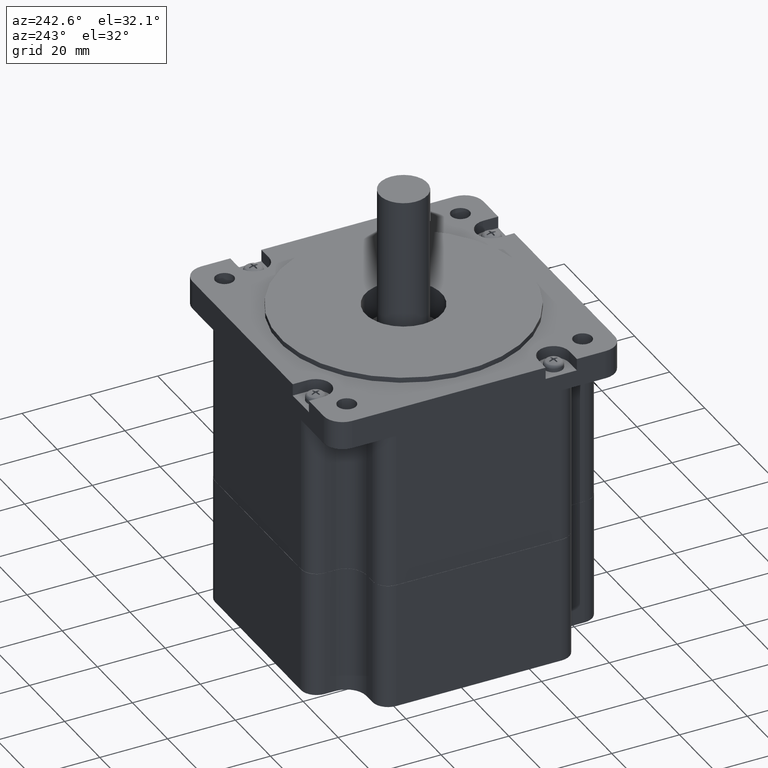
[diagram: clean part render]
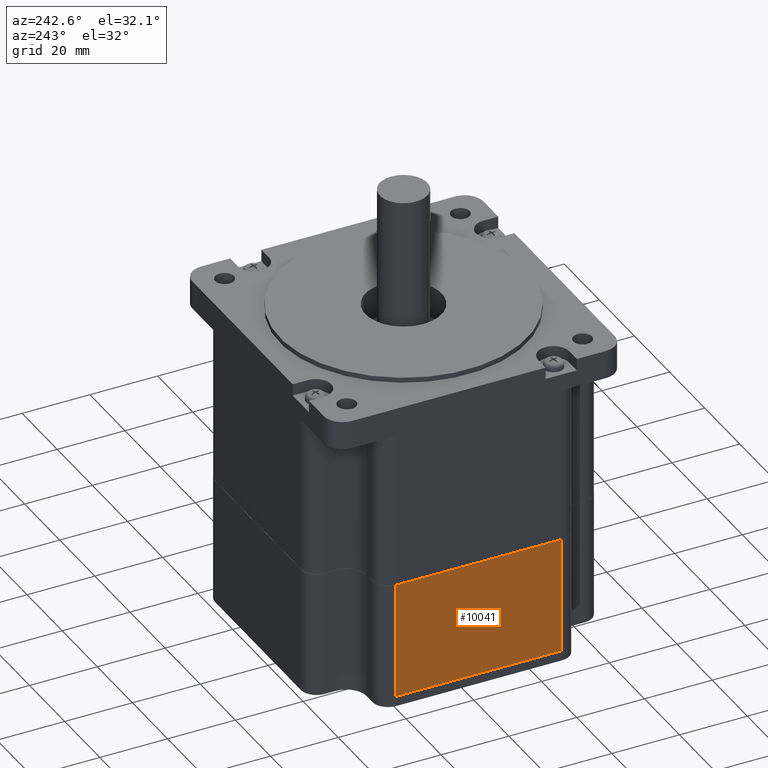
[diagram: same view with one face highlighted and labeled with its STEP entity id]
A machine part, auxiliary view. The second image highlights one B-rep face of the part: STEP entity #10041.
In plain terms, the highlighted planar face has unit normal (-1, 0, 0).
Its self-contained STEP definition (entity closure, byte-faithful):
#9983=CARTESIAN_POINT('',(-42.97500000000003,-24.424999999999997,-71.299999999999912));
#9984=VERTEX_POINT('',#9983);
#9993=CARTESIAN_POINT('',(-42.97500000000003,-24.424999999999997,-36.899999999999913));
#9994=VERTEX_POINT('',#9993);
#10002=CARTESIAN_POINT('',(-42.97500000000003,-24.424999999999997,-71.299999999999912));
#10003=DIRECTION('',(0.0,0.0,1.0));
#10004=VECTOR('',#10003,34.399999999999999);
#10005=LINE('',#10002,#10004);
#10006=EDGE_CURVE('',#9984,#9994,#10005,.T.);
#10011=CARTESIAN_POINT('',(-42.97500000000003,24.475000000000009,-71.299999999999912));
#10012=DIRECTION('',(-1.0,0.0,0.0));
#10013=DIRECTION('',(0.0,-1.0,0.0));
#10014=AXIS2_PLACEMENT_3D('',#10011,#10012,#10013);
#10015=PLANE('',#10014);
#10016=CARTESIAN_POINT('',(-42.97500000000003,24.475000000000009,-71.299999999999912));
#10017=VERTEX_POINT('',#10016);
#10018=CARTESIAN_POINT('',(-42.97500000000003,-24.424999999999997,-71.299999999999912));
#10019=DIRECTION('',(0.0,1.0,0.0));
#10020=VECTOR('',#10019,48.900000000000006);
#10021=LINE('',#10018,#10020);
#10022=EDGE_CURVE('',#9984,#10017,#10021,.T.);
#10023=ORIENTED_EDGE('',*,*,#10022,.F.);
#10024=ORIENTED_EDGE('',*,*,#10006,.T.);
#10025=CARTESIAN_POINT('',(-42.97500000000003,24.475000000000009,-36.899999999999913));
#10026=VERTEX_POINT('',#10025);
#10027=CARTESIAN_POINT('',(-42.97500000000003,24.475000000000009,-36.899999999999913));
#10028=DIRECTION('',(0.0,-1.0,0.0));
#10029=VECTOR('',#10028,48.900000000000006);
#10030=LINE('',#10027,#10029);
#10031=EDGE_CURVE('',#10026,#9994,#10030,.T.);
#10032=ORIENTED_EDGE('',*,*,#10031,.F.);
#10033=CARTESIAN_POINT('',(-42.97500000000003,24.475000000000009,-71.299999999999912));
#10034=DIRECTION('',(0.0,0.0,1.0));
#10035=VECTOR('',#10034,34.399999999999999);
#10036=LINE('',#10033,#10035);
#10037=EDGE_CURVE('',#10017,#10026,#10036,.T.);
#10038=ORIENTED_EDGE('',*,*,#10037,.F.);
#10039=EDGE_LOOP('',(#10023,#10024,#10032,#10038));
#10040=FACE_OUTER_BOUND('',#10039,.T.);
#10041=ADVANCED_FACE('',(#10040),#10015,.T.);